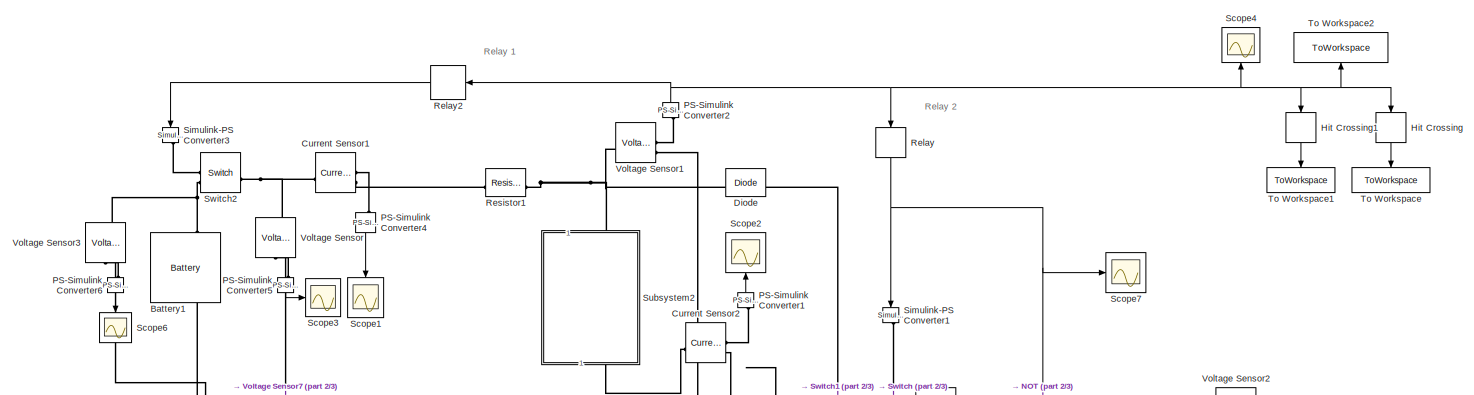
[diagram: root canvas - part 1/3, full width, top band]
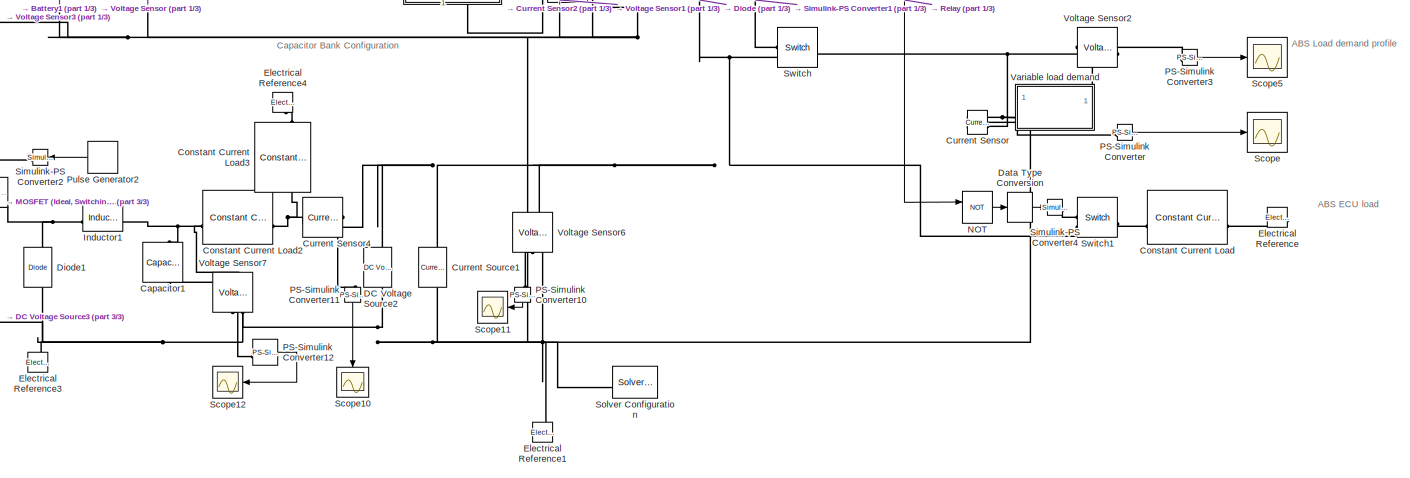
[diagram: root canvas - part 2/3, full width, bottom band]
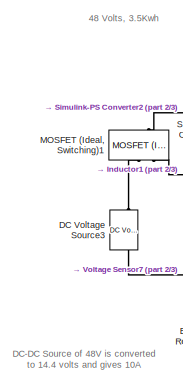
[diagram: root canvas - part 3/3, bottom left region]
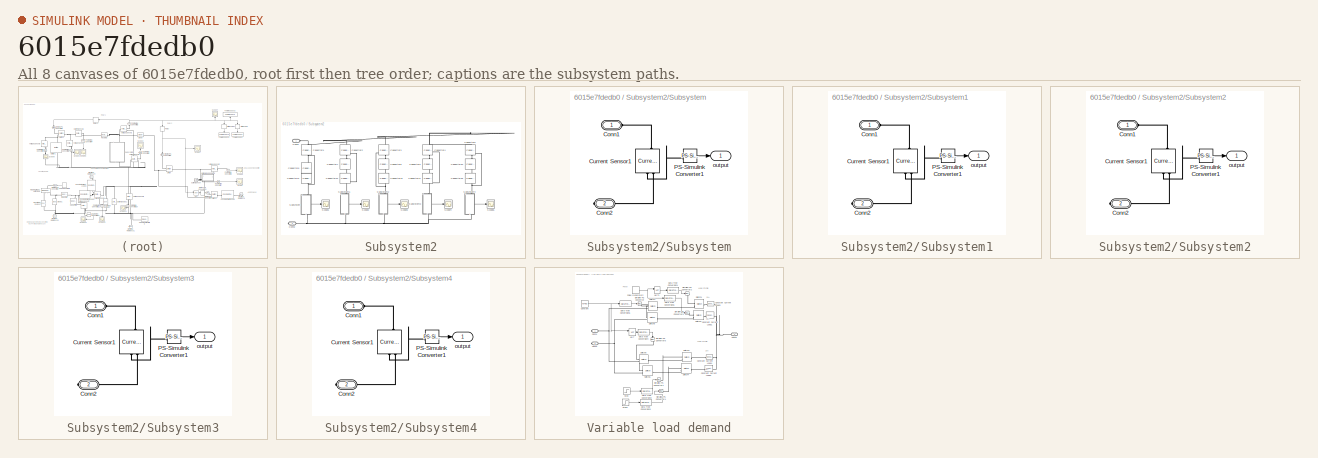
[diagram: thumbnail index - all 8 canvases of the model, root first then tree order]
MODEL slx_6015e7fdedb0
KIND model
CONFIG AbsTol = auto
CONFIG EnableMultiTasking = off
CONFIG FixedStep = auto
CONFIG MaxStep = auto
CONFIG MinStep = auto
CONFIG RelTol = 1e-3
CONFIG SampleTimeConstraint = Unconstrained
CONFIG SolverName = VariableStepAuto
CONFIG StartTime = 0.0
CONFIG StopTime = 200
BLOCK [Reference] Battery1  REF=batteryecm_lib/Battery
  LibrarySourceBlock = ee_lib/Sources/Battery
  NameLocation = right
  SourceBlock = batteryecm_lib/Battery
  SourceType = Battery
BLOCK [Reference] Capacitor1  REF=fl_lib/Electrical/Electrical Elements/Capacitor
  Commented = on
  NameLocation = left
  SourceBlock = fl_lib/Electrical/Electrical Elements/Capacitor
  SourceType = Capacitor
BLOCK [Reference] Constant Current Load  REF=ee_lib/Passive/Constant Current
Load
  SourceBlock = ee_lib/Passive/Constant Current\nLoad
  SourceType = Constant Current\nLoad
BLOCK [Reference] Constant Current Load2  REF=ee_lib/Passive/Constant Current
Load
  Commented = on
  SourceBlock = ee_lib/Passive/Constant Current\nLoad
  SourceType = Constant Current\nLoad
BLOCK [Reference] Constant Current Load3  REF=ee_lib/Passive/Constant Current
Load
  Commented = on
  NameLocation = right
  SourceBlock = ee_lib/Passive/Constant Current\nLoad
  SourceType = Constant Current\nLoad
BLOCK [Reference] Current Sensor  REF=fl_lib/Electrical/Electrical Sensors/Current Sensor
  LibrarySourceBlock = ee_lib/Sensors &\nTransducers/Current Sensor
  SourceBlock = fl_lib/Electrical/Electrical Sensors/Current Sensor
  SourceType = Current Sensor
BLOCK [Reference] Current Sensor1  REF=fl_lib/Electrical/Electrical Sensors/Current Sensor
  LibrarySourceBlock = ee_lib/Sensors &\nTransducers/Current Sensor
  SourceBlock = fl_lib/Electrical/Electrical Sensors/Current Sensor
  SourceType = Current Sensor
BLOCK [Reference] Current Sensor2  REF=fl_lib/Electrical/Electrical Sensors/Current Sensor
  LibrarySourceBlock = ee_lib/Sensors &\nTransducers/Current Sensor
  SourceBlock = fl_lib/Electrical/Electrical Sensors/Current Sensor
  SourceType = Current Sensor
BLOCK [Reference] Current Sensor4  REF=fl_lib/Electrical/Electrical Sensors/Current Sensor
  Commented = on
  LibrarySourceBlock = ee_lib/Sensors &\nTransducers/Current Sensor
  SourceBlock = fl_lib/Electrical/Electrical Sensors/Current Sensor
  SourceType = Current Sensor
BLOCK [Reference] Current Source1  REF=ee_lib/Sources/Current Source
  NameLocation = left
  SourceBlock = ee_lib/Sources/Current Source
  SourceType = Current Source
BLOCK [Reference] DC Voltage Source2  REF=ee_lib/Additional
Components/SPICE Sources/DC Voltage Source
  Commented = on
  NameLocation = right
  SourceBlock = ee_lib/Additional\nComponents/SPICE Sources/DC Voltage Source
  SourceType = DC Voltage Source
BLOCK [Reference] DC Voltage Source3  REF=ee_lib/Additional
Components/SPICE Sources/DC Voltage Source
  Commented = on
  NameLocation = right
  SourceBlock = ee_lib/Additional\nComponents/SPICE Sources/DC Voltage Source
  SourceType = DC Voltage Source
BLOCK [DataTypeConversion] Data Type Conversion
  OutDataTypeStr = double
  RndMeth = Floor
  SaturateOnIntegerOverflow = off
BLOCK [Reference] Diode  REF=ee_lib/Semiconductors &
Converters/Diode
  SourceBlock = ee_lib/Semiconductors &\nConverters/Diode
  SourceType = Diode
BLOCK [Reference] Diode1  REF=fl_lib/Electrical/Electrical Elements/Diode
  Commented = on
  NameLocation = right
  SourceBlock = fl_lib/Electrical/Electrical Elements/Diode
  SourceType = Diode
BLOCK [Reference] Electrical Reference  REF=fl_lib/Electrical/Electrical Elements/Electrical Reference
  NameLocation = top
  SourceBlock = fl_lib/Electrical/Electrical Elements/Electrical Reference
  SourceType = Electrical Reference
BLOCK [Reference] Electrical Reference1  REF=fl_lib/Electrical/Electrical Elements/Electrical Reference
  NameLocation = right
  SourceBlock = fl_lib/Electrical/Electrical Elements/Electrical Reference
  SourceType = Electrical Reference
BLOCK [Reference] Electrical Reference3  REF=fl_lib/Electrical/Electrical Elements/Electrical Reference
  Commented = on
  NameLocation = right
  SourceBlock = fl_lib/Electrical/Electrical Elements/Electrical Reference
  SourceType = Electrical Reference
BLOCK [Reference] Electrical Reference4  REF=fl_lib/Electrical/Electrical Elements/Electrical Reference
  Commented = on
  NameLocation = left
  SourceBlock = fl_lib/Electrical/Electrical Elements/Electrical Reference
  SourceType = Electrical Reference
BLOCK [HitCross] Hit Crossing
  HitCrossingDirection = rising
  HitCrossingOffset = 14.4-1e-5
  NameLocation = left
BLOCK [HitCross] Hit Crossing1
  HitCrossingDirection = falling
  HitCrossingOffset = 12+1e-5
  NameLocation = left
BLOCK [Reference] Inductor1  REF=ee_lib/Passive/Inductor
  Commented = on
  SourceBlock = ee_lib/Passive/Inductor
  SourceType = Inductor
BLOCK [Reference] MOSFET (Ideal, Switching)1  REF=ee_lib/Semiconductors &
Converters/MOSFET
(Ideal,
Switching)
  Commented = on
  NameLocation = left
  SourceBlock = ee_lib/Semiconductors &\nConverters/MOSFET\n(Ideal,\nSwitching)
  SourceType = MOSFET\n(Ideal,\nSwitching)
BLOCK [Logic] NOT
  AllPortsSameDT = off
  IconShape = distinctive
  Operator = NOT
  OutDataTypeStr = boolean
BLOCK [Reference] PS-Simulink Converter  REF=nesl_utility/PS-Simulink
Converter
  SourceBlock = nesl_utility/PS-Simulink\nConverter
  SourceType = PS-Simulink\nConverter
BLOCK [Reference] PS-Simulink Converter1  REF=nesl_utility/PS-Simulink
Converter
  NameLocation = right
  SourceBlock = nesl_utility/PS-Simulink\nConverter
  SourceType = PS-Simulink\nConverter
BLOCK [Reference] PS-Simulink Converter10  REF=nesl_utility/PS-Simulink
Converter
  Commented = on
  NameLocation = left
  SourceBlock = nesl_utility/PS-Simulink\nConverter
  SourceType = PS-Simulink\nConverter
BLOCK [Reference] PS-Simulink Converter11  REF=nesl_utility/PS-Simulink
Converter
  Commented = on
  NameLocation = left
  SourceBlock = nesl_utility/PS-Simulink\nConverter
  SourceType = PS-Simulink\nConverter
BLOCK [Reference] PS-Simulink Converter12  REF=nesl_utility/PS-Simulink
Converter
  Commented = on
  SourceBlock = nesl_utility/PS-Simulink\nConverter
  SourceType = PS-Simulink\nConverter
BLOCK [Reference] PS-Simulink Converter2  REF=nesl_utility/PS-Simulink
Converter
  NameLocation = right
  SourceBlock = nesl_utility/PS-Simulink\nConverter
  SourceType = PS-Simulink\nConverter
BLOCK [Reference] PS-Simulink Converter3  REF=nesl_utility/PS-Simulink
Converter
  SourceBlock = nesl_utility/PS-Simulink\nConverter
  SourceType = PS-Simulink\nConverter
BLOCK [Reference] PS-Simulink Converter4  REF=nesl_utility/PS-Simulink
Converter
  NameLocation = left
  SourceBlock = nesl_utility/PS-Simulink\nConverter
  SourceType = PS-Simulink\nConverter
BLOCK [Reference] PS-Simulink Converter5  REF=nesl_utility/PS-Simulink
Converter
  NameLocation = left
  SourceBlock = nesl_utility/PS-Simulink\nConverter
  SourceType = PS-Simulink\nConverter
BLOCK [Reference] PS-Simulink Converter6  REF=nesl_utility/PS-Simulink
Converter
  NameLocation = left
  SourceBlock = nesl_utility/PS-Simulink\nConverter
  SourceType = PS-Simulink\nConverter
BLOCK [DiscretePulseGenerator] Pulse Generator2
  Amplitude = 10
  Commented = on
  NameLocation = top
  Period = 6.8e-6
  PulseType = Time based
  PulseWidth = 35
BLOCK [Relay] Relay
  NameLocation = left
  OffSwitchValue = 12
  OnSwitchValue = 14.4
BLOCK [Relay] Relay2
  NameLocation = top
  OffOutputValue = 1
  OffSwitchValue = 12
  OnOutputValue = 0
  OnSwitchValue = 14.4
BLOCK [Reference] Resistor1  REF=ee_lib/Passive/Resistor
  SourceBlock = ee_lib/Passive/Resistor
  SourceType = Resistor
BLOCK [Scope] Scope
  ActiveDisplayYMaximum = 27.61130390431217
  ActiveDisplayYMinimum = -2.3648639856745817
  ContainerLayout = {"WindowBounds":[-15,0,1554,868]}
  Floating = off
  GraphicalSettings = {"Style":{"BackgroundColor":[0.12941176470588237,0.12941176470588237,0.12941176470588237],"AxesColor":[0.07058823529411765,0.07058823529411765,0.07058823529411765],"LabelsColor":[0.8509803921568627,0.8509803921568627,0.8509803921568627],"PreserveColors":false,"Visible":[true],"LineStyle":["-"],"LineWidth":[1.5],"BarWidth":[0.9],"LineColor":["auto"],"LineFaceAlpha":[1],"LineEdgeAlpha":[1],"Marker":...<+2004ch>
  MultipleDisplayCache = [{"MaxYLimMag":28.031250076644522,"MaxYLimReal":27.61130390431217,"MinYLimMag":0,"MinYLimReal":-2.3648639856745817,"PlotAsMagnitudePhase":false,"ShowGrid":true,"ShowLegend":false,"Title":"%<SignalLabel>","YLabel":""}]
  NameLocation = top
  NumInputPorts = 1
  ScopeFrameLocation = container
  Visible = on
  WasSavedAsWebScope = on
  WindowPosition = [-15.000000,-4.000000,1539.000000,844.000000,]
BLOCK [Scope] Scope1
  ActiveDisplayYMaximum = 37.045887512901437
  ActiveDisplayYMinimum = 17.431562644790098
  DataLoggingVariableName = ScopeData2
  Floating = off
  GraphicalSettings = {"AxesScalingProperties":{"AlignXAxis":"Center","AlignYAxis":"Center","AutoScaleXAxisLimits":false,"AxesScaling":"Manual","AxesScalingNumUpdates":10,"ExpandOnly":true,"ScaleAxesLimitsAtStop":false,"XAxisDataRange":100,"YAxisDataRange":80},"DisplayProperties":{"ColorOrder":["auto","auto","auto","auto","auto","auto","auto","auto","auto","auto","auto","auto","auto","auto","auto","auto","auto","auto",...<+2014ch>
  MultipleDisplayCache = [{"MaxYLimMag":39.582278342271373,"MaxYLimReal":37.045887512901437,"MinYLimMag":0,"MinYLimReal":17.431562644790098,"PlotAsMagnitudePhase":false,"ShowGrid":true,"ShowLegend":false,"Title":"%<SignalLabel>","YLabel":""}]
  NameLocation = left
  NumInputPorts = 1
  ScopeFrameLocation = window
  WasSavedAsWebScope = on
  WindowPosition = [0.000000,36.000000,1536.000000,793.000000,]
BLOCK [Scope] Scope10
  ActiveDisplayYMaximum = 5.2520104006562276
  ActiveDisplayYMinimum = -7.2502393778438039
  Commented = on
  DataLoggingVariableName = ScopeData12
  Floating = off
  GraphicalSettings = {"Style":{"BackgroundColor":[0.12941176470588237,0.12941176470588237,0.12941176470588237],"AxesColor":[0.07058823529411765,0.07058823529411765,0.07058823529411765],"LabelsColor":[0.8509803921568627,0.8509803921568627,0.8509803921568627],"PreserveColors":false,"Visible":[true],"LineStyle":["-"],"LineWidth":[1.5],"BarWidth":[0.9],"LineColor":["auto"],"LineFaceAlpha":[1],"LineEdgeAlpha":[1],"Marker":...<+2002ch>
  MultipleDisplayCache = [{"MaxYLimMag":7.2502393778438039,"MaxYLimReal":5.2520104006562276,"MinYLimMag":0,"MinYLimReal":-7.2502393778438039,"PlotAsMagnitudePhase":false,"ShowGrid":true,"ShowLegend":false,"Title":"%<SignalLabel>","YLabel":""}]
  NameLocation = left
  NumInputPorts = 1
  ScopeFrameLocation = window
  WasSavedAsWebScope = on
  WindowPosition = [0.000000,36.000000,1536.000000,793.000000,]
BLOCK [Scope] Scope11
  ActiveDisplayYMaximum = 2.2500000758625E+8
  ActiveDisplayYMinimum = -2.4999995176250011E+7
  Commented = on
  DataLoggingVariableName = ScopeData13
  Floating = off
  GraphicalSettings = {"Style":{"BackgroundColor":[0.12941176470588237,0.12941176470588237,0.12941176470588237],"AxesColor":[0.07058823529411765,0.07058823529411765,0.07058823529411765],"LabelsColor":[0.8509803921568627,0.8509803921568627,0.8509803921568627],"PreserveColors":false,"Visible":[true],"LineStyle":["-"],"LineWidth":[1.5],"BarWidth":[0.9],"LineColor":["auto"],"LineFaceAlpha":[1],"LineEdgeAlpha":[1],"Marker":...<+1994ch>
  MultipleDisplayCache = [{"MaxYLimMag":2.2500000758625E+8,"MaxYLimReal":2.2500000758625E+8,"MinYLimMag":0,"MinYLimReal":-2.4999995176250011E+7,"PlotAsMagnitudePhase":false,"ShowGrid":true,"ShowLegend":false,"Title":"%<SignalLabel>","YLabel":""}]
  NameLocation = top
  NumInputPorts = 1
  ScopeFrameLocation = window
  WasSavedAsWebScope = on
  WindowPosition = [0.000000,36.000000,1536.000000,793.000000,]
BLOCK [Scope] Scope12
  ActiveDisplayYMaximum = 22.011261673851934
  ActiveDisplayYMinimum = -2.4456957415230445
  Commented = on
  DataLoggingVariableName = ScopeData15
  Floating = off
  GraphicalSettings = {"Style":{"BackgroundColor":[0.12941176470588237,0.12941176470588237,0.12941176470588237],"AxesColor":[0.07058823529411765,0.07058823529411765,0.07058823529411765],"LabelsColor":[0.8509803921568627,0.8509803921568627,0.8509803921568627],"PreserveColors":false,"Visible":[true],"LineStyle":["-"],"LineWidth":[1.5],"BarWidth":[0.9],"LineColor":["auto"],"LineFaceAlpha":[1],"LineEdgeAlpha":[1],"Marker":...<+2198ch>
  MultipleDisplayCache = [{"MaxYLimMag":22.011261673851934,"MaxYLimReal":22.011261673851934,"MinYLimMag":0,"MinYLimReal":-2.4456957415230445,"PlotAsMagnitudePhase":false,"ShowGrid":true,"ShowLegend":false,"Title":"%<SignalLabel>","YLabel":""}]
  NameLocation = top
  NumInputPorts = 1
  ScopeFrameLocation = window
  WasSavedAsWebScope = on
  WindowPosition = [0.000000,36.000000,1536.000000,793.000000,]
BLOCK [Scope] Scope2
  ActiveDisplayYMaximum = 43.051029686023256
  ActiveDisplayYMinimum = -28.1167808744842
  DataLoggingVariableName = ScopeData3
  Floating = off
  GraphicalSettings = {"Style":{"BackgroundColor":[0.12941176470588237,0.12941176470588237,0.12941176470588237],"AxesColor":[0.07058823529411765,0.07058823529411765,0.07058823529411765],"LabelsColor":[0.8509803921568627,0.8509803921568627,0.8509803921568627],"PreserveColors":false,"Visible":[true],"LineStyle":["-"],"LineWidth":[1.5],"BarWidth":[0.9],"LineColor":["auto"],"LineFaceAlpha":[1],"LineEdgeAlpha":[1],"Marker":...<+2003ch>
  MultipleDisplayCache = [{"MaxYLimMag":43.051029686023256,"MaxYLimReal":43.051029686023256,"MinYLimMag":0,"MinYLimReal":-28.1167808744842,"PlotAsMagnitudePhase":false,"ShowGrid":true,"ShowLegend":false,"Title":"%<SignalLabel>","YLabel":""}]
  NameLocation = right
  NumInputPorts = 1
  ScopeFrameLocation = window
  WasSavedAsWebScope = on
  WindowPosition = [0.000000,36.000000,1536.000000,793.000000,]
BLOCK [Scope] Scope3
  ActiveDisplayYMaximum = 51.6083510764541
  ActiveDisplayYMinimum = 7.599072497448482
  DataLoggingVariableName = ScopeData10
  Floating = off
  GraphicalSettings = {"Style":{"BackgroundColor":[0.12941176470588237,0.12941176470588237,0.12941176470588237],"AxesColor":[0.07058823529411765,0.07058823529411765,0.07058823529411765],"LabelsColor":[0.8509803921568627,0.8509803921568627,0.8509803921568627],"PreserveColors":false,"Visible":[true],"LineStyle":["-"],"LineWidth":[1.5],"BarWidth":[0.9],"LineColor":["auto"],"LineFaceAlpha":[1],"LineEdgeAlpha":[1],"Marker":...<+2027ch>
  MultipleDisplayCache = [{"MaxYLimMag":51.6083510764541,"MaxYLimReal":51.6083510764541,"MinYLimMag":7.599072497448482,"MinYLimReal":7.599072497448482,"PlotAsMagnitudePhase":false,"ShowGrid":true,"ShowLegend":false,"Title":"%<SignalLabel>","YLabel":""}]
  NumInputPorts = 1
  ScopeFrameLocation = window
  WasSavedAsWebScope = on
  WindowPosition = [917.000000,259.000000,560.000000,420.000000,]
BLOCK [Scope] Scope4
  ActiveDisplayYMaximum = 14.527639533826589
  ActiveDisplayYMinimum = 11.875151160641268
  DataLoggingVariableName = ScopeData4
  Floating = off
  GraphicalSettings = {"AxesScalingProperties":{"AlignXAxis":"Center","AlignYAxis":"Center","AutoScaleXAxisLimits":false,"AxesScaling":"Manual","AxesScalingNumUpdates":10,"ExpandOnly":true,"ScaleAxesLimitsAtStop":false,"XAxisDataRange":100,"YAxisDataRange":80},"DisplayProperties":{"ColorOrder":["auto","auto","auto","auto","auto","auto","auto","auto","auto","auto","auto","auto","auto","auto","auto","auto","auto","auto",...<+2046ch>
  MultipleDisplayCache = [{"MaxYLimMag":14.7,"MaxYLimReal":14.527639533826589,"MinYLimMag":11.700000000000003,"MinYLimReal":11.875151160641268,"PlotAsMagnitudePhase":false,"ShowGrid":true,"ShowLegend":false,"Title":"%<SignalLabel>","YLabel":""}]
  NameLocation = right
  NumInputPorts = 1
  ScopeFrameLocation = window
  WasSavedAsWebScope = on
  WindowPosition = [0.000000,36.000000,1536.000000,793.000000,]
BLOCK [Scope] Scope5
  ActiveDisplayYMaximum = 14.246288485536391
  ActiveDisplayYMinimum = 2.3596738442827845
  DataLoggingVariableName = ScopeData5
  Floating = off
  GraphicalSettings = {"Style":{"BackgroundColor":[0.12941176470588237,0.12941176470588237,0.12941176470588237],"AxesColor":[0.07058823529411765,0.07058823529411765,0.07058823529411765],"LabelsColor":[0.8509803921568627,0.8509803921568627,0.8509803921568627],"PreserveColors":false,"Visible":[true],"LineStyle":["-"],"LineWidth":[1.5],"BarWidth":[0.9],"LineColor":["auto"],"LineFaceAlpha":[1],"LineEdgeAlpha":[1],"Marker":...<+2039ch>
  MultipleDisplayCache = [{"MaxYLimMag":14.246288485536391,"MaxYLimReal":14.246288485536391,"MinYLimMag":2.3596738442827845,"MinYLimReal":2.3596738442827845,"PlotAsMagnitudePhase":false,"ShowGrid":true,"ShowLegend":false,"Title":"%<SignalLabel>","YLabel":""}]
  NumInputPorts = 1
  ScopeFrameLocation = window
  WasSavedAsWebScope = on
  WindowPosition = [0.000000,36.000000,1536.000000,793.000000,]
BLOCK [Scope] Scope6
  ActiveDisplayYMaximum = 47.537116092591106
  ActiveDisplayYMinimum = 47.527226275989328
  DataLoggingVariableName = ScopeData11
  Floating = off
  GraphicalSettings = {"Style":{"BackgroundColor":[0.12941176470588237,0.12941176470588237,0.12941176470588237],"AxesColor":[0.07058823529411765,0.07058823529411765,0.07058823529411765],"LabelsColor":[0.8509803921568627,0.8509803921568627,0.8509803921568627],"PreserveColors":false,"Visible":[true],"LineStyle":["-"],"LineWidth":[1.5],"BarWidth":[0.9],"LineColor":["auto"],"LineFaceAlpha":[1],"LineEdgeAlpha":[1],"Marker":...<+2035ch>
  MultipleDisplayCache = [{"MaxYLimMag":47.537116092591106,"MaxYLimReal":47.537116092591106,"MinYLimMag":47.527226275989328,"MinYLimReal":47.527226275989328,"PlotAsMagnitudePhase":false,"ShowGrid":true,"ShowLegend":false,"Title":"%<SignalLabel>","YLabel":""}]
  NameLocation = left
  NumInputPorts = 1
  ScopeFrameLocation = window
  WasSavedAsWebScope = on
  WindowPosition = [917.000000,259.000000,560.000000,420.000000,]
BLOCK [Scope] Scope7
  ActiveDisplayYMaximum = 1.125
  ActiveDisplayYMinimum = -0.12499999999999997
  DataLoggingVariableName = ScopeData14
  Floating = off
  GraphicalSettings = {"Style":{"BackgroundColor":[0.12941176470588237,0.12941176470588237,0.12941176470588237],"AxesColor":[0.07058823529411765,0.07058823529411765,0.07058823529411765],"LabelsColor":[0.8509803921568627,0.8509803921568627,0.8509803921568627],"PreserveColors":false,"Visible":[true],"LineStyle":["-"],"LineWidth":[1.5],"BarWidth":[0.9],"LineColor":["auto"],"LineFaceAlpha":[1],"LineEdgeAlpha":[1],"Marker":...<+2022ch>
  MultipleDisplayCache = [{"MaxYLimMag":1.125,"MaxYLimReal":1.125,"MinYLimMag":0,"MinYLimReal":-0.12499999999999997,"PlotAsMagnitudePhase":false,"ShowGrid":true,"ShowLegend":false,"Title":"%<SignalLabel>","YLabel":""}]
  NumInputPorts = 1
  ScopeFrameLocation = window
  WasSavedAsWebScope = on
  WindowPosition = [0.000000,36.000000,1536.000000,793.000000,]
BLOCK [Reference] Simulink-PS Converter1  REF=nesl_utility/Simulink-PS
Converter
  NameLocation = left
  SourceBlock = nesl_utility/Simulink-PS\nConverter
  SourceType = Simulink-PS\nConverter
BLOCK [Reference] Simulink-PS Converter2  REF=nesl_utility/Simulink-PS
Converter
  Commented = on
  NameLocation = top
  SourceBlock = nesl_utility/Simulink-PS\nConverter
  SourceType = Simulink-PS\nConverter
BLOCK [Reference] Simulink-PS Converter3  REF=nesl_utility/Simulink-PS
Converter
  NameLocation = left
  SourceBlock = nesl_utility/Simulink-PS\nConverter
  SourceType = Simulink-PS\nConverter
BLOCK [Reference] Simulink-PS Converter4  REF=nesl_utility/Simulink-PS
Converter
  SourceBlock = nesl_utility/Simulink-PS\nConverter
  SourceType = Simulink-PS\nConverter
BLOCK [Reference] Solver Configuration  REF=nesl_utility/Solver
Configuration
  NameLocation = top
  SourceBlock = nesl_utility/Solver\nConfiguration
  SourceType = Solver\nConfiguration
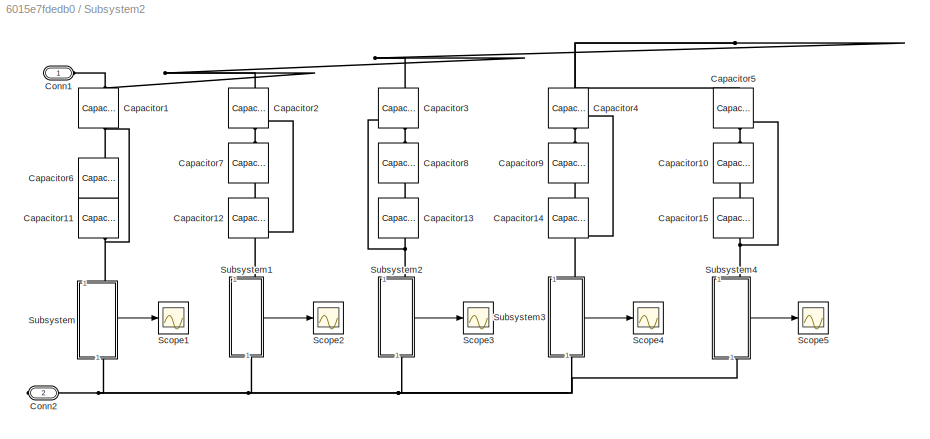
BLOCK [SubSystem] Subsystem2
  NameLocation = left
BLOCK [Reference] Subsystem2/Capacitor1  REF=fl_lib/Electrical/Electrical Elements/Capacitor
  NameLocation = left
  SourceBlock = fl_lib/Electrical/Electrical Elements/Capacitor
  SourceType = Capacitor
BLOCK [Reference] Subsystem2/Capacitor10  REF=fl_lib/Electrical/Electrical Elements/Capacitor
  Commented = on
  NameLocation = left
  SourceBlock = fl_lib/Electrical/Electrical Elements/Capacitor
  SourceType = Capacitor
BLOCK [Reference] Subsystem2/Capacitor11  REF=fl_lib/Electrical/Electrical Elements/Capacitor
  Commented = on
  NameLocation = left
  SourceBlock = fl_lib/Electrical/Electrical Elements/Capacitor
  SourceType = Capacitor
BLOCK [Reference] Subsystem2/Capacitor12  REF=fl_lib/Electrical/Electrical Elements/Capacitor
  Commented = on
  NameLocation = left
  SourceBlock = fl_lib/Electrical/Electrical Elements/Capacitor
  SourceType = Capacitor
BLOCK [Reference] Subsystem2/Capacitor13  REF=fl_lib/Electrical/Electrical Elements/Capacitor
  Commented = on
  NameLocation = left
  SourceBlock = fl_lib/Electrical/Electrical Elements/Capacitor
  SourceType = Capacitor
BLOCK [Reference] Subsystem2/Capacitor14  REF=fl_lib/Electrical/Electrical Elements/Capacitor
  Commented = on
  NameLocation = left
  SourceBlock = fl_lib/Electrical/Electrical Elements/Capacitor
  SourceType = Capacitor
BLOCK [Reference] Subsystem2/Capacitor15  REF=fl_lib/Electrical/Electrical Elements/Capacitor
  Commented = on
  NameLocation = left
  SourceBlock = fl_lib/Electrical/Electrical Elements/Capacitor
  SourceType = Capacitor
BLOCK [Reference] Subsystem2/Capacitor2  REF=fl_lib/Electrical/Electrical Elements/Capacitor
  Commented = on
  NameLocation = left
  SourceBlock = fl_lib/Electrical/Electrical Elements/Capacitor
  SourceType = Capacitor
BLOCK [Reference] Subsystem2/Capacitor3  REF=fl_lib/Electrical/Electrical Elements/Capacitor
  Commented = on
  NameLocation = left
  SourceBlock = fl_lib/Electrical/Electrical Elements/Capacitor
  SourceType = Capacitor
BLOCK [Reference] Subsystem2/Capacitor4  REF=fl_lib/Electrical/Electrical Elements/Capacitor
  Commented = on
  NameLocation = left
  SourceBlock = fl_lib/Electrical/Electrical Elements/Capacitor
  SourceType = Capacitor
BLOCK [Reference] Subsystem2/Capacitor5  REF=fl_lib/Electrical/Electrical Elements/Capacitor
  Commented = on
  NameLocation = left
  SourceBlock = fl_lib/Electrical/Electrical Elements/Capacitor
  SourceType = Capacitor
BLOCK [Reference] Subsystem2/Capacitor6  REF=fl_lib/Electrical/Electrical Elements/Capacitor
  Commented = on
  NameLocation = left
  SourceBlock = fl_lib/Electrical/Electrical Elements/Capacitor
  SourceType = Capacitor
BLOCK [Reference] Subsystem2/Capacitor7  REF=fl_lib/Electrical/Electrical Elements/Capacitor
  Commented = on
  NameLocation = left
  SourceBlock = fl_lib/Electrical/Electrical Elements/Capacitor
  SourceType = Capacitor
BLOCK [Reference] Subsystem2/Capacitor8  REF=fl_lib/Electrical/Electrical Elements/Capacitor
  Commented = on
  NameLocation = left
  SourceBlock = fl_lib/Electrical/Electrical Elements/Capacitor
  SourceType = Capacitor
BLOCK [Reference] Subsystem2/Capacitor9  REF=fl_lib/Electrical/Electrical Elements/Capacitor
  Commented = on
  NameLocation = left
  SourceBlock = fl_lib/Electrical/Electrical Elements/Capacitor
  SourceType = Capacitor
BLOCK [PMIOPort] Subsystem2/Conn1
  Side = Left
BLOCK [PMIOPort] Subsystem2/Conn2
  NameLocation = top
  Port = 2
  Side = Right
BLOCK [Scope] Subsystem2/Scope1
  ActiveDisplayYMaximum = -8.8960627023866969
  ActiveDisplayYMinimum = -26.0749663060359
  DataLoggingVariableName = ScopeData1
  Floating = off
  GraphicalSettings = {"AxesScalingProperties":{"AlignXAxis":"Center","AlignYAxis":"Center","AutoScaleXAxisLimits":false,"AxesScaling":"Manual","AxesScalingNumUpdates":10,"ExpandOnly":true,"ScaleAxesLimitsAtStop":false,"XAxisDataRange":100,"YAxisDataRange":80},"DisplayProperties":{"ColorOrder":["auto","auto","auto","auto","auto","auto","auto","auto","auto","auto","auto","auto","auto","auto","auto","auto","auto","auto",...<+1999ch>
  MultipleDisplayCache = [{"MaxYLimMag":27.870922892030176,"MaxYLimReal":-8.8960627023866969,"MinYLimMag":0,"MinYLimReal":-26.0749663060359,"PlotAsMagnitudePhase":false,"ShowGrid":true,"ShowLegend":false,"Title":"%<SignalLabel>","YLabel":""}]
  NumInputPorts = 1
  ScopeFrameLocation = window
  WasSavedAsWebScope = on
  WindowPosition = [0.000000,36.000000,1536.000000,793.000000,]
BLOCK [Scope] Subsystem2/Scope2
  ActiveDisplayYMaximum = 5.6799472599220806
  ActiveDisplayYMinimum = -32.03150883871016
  Commented = on
  DataLoggingVariableName = ScopeData6
  Floating = off
  GraphicalSettings = {"Style":{"BackgroundColor":[0.12941176470588237,0.12941176470588237,0.12941176470588237],"AxesColor":[0.07058823529411765,0.07058823529411765,0.07058823529411765],"LabelsColor":[0.8509803921568627,0.8509803921568627,0.8509803921568627],"PreserveColors":false,"Visible":[true],"LineStyle":["-"],"LineWidth":[1.5],"BarWidth":[0.9],"LineColor":["auto"],"LineFaceAlpha":[1],"LineEdgeAlpha":[1],"Marker":...<+1990ch>  <repeated x4 — deduplicated; at blocks: Scope2, Scope3, Scope4, Scope5>
  MultipleDisplayCache = [{"MaxYLimMag":27.870922892030176,"MaxYLimReal":5.6799472599220806,"MinYLimMag":0,"MinYLimReal":-32.03150883871016,"PlotAsMagnitudePhase":false,"ShowGrid":true,"ShowLegend":false,"Title":"%<SignalLabel>","YLabel":""}]  <repeated x4 — deduplicated; at blocks: Scope2, Scope3, Scope4, Scope5>
  NumInputPorts = 1
  ScopeFrameLocation = window
  WasSavedAsWebScope = on
  WindowPosition = [0.000000,36.000000,1536.000000,793.000000,]
BLOCK [Scope] Subsystem2/Scope3
  ActiveDisplayYMaximum = 5.6799472599220806
  ActiveDisplayYMinimum = -32.03150883871016
  Commented = on
  DataLoggingVariableName = ScopeData7
  Floating = off
  NumInputPorts = 1
  ScopeFrameLocation = window
  WasSavedAsWebScope = on
  WindowPosition = [0.000000,36.000000,1536.000000,793.000000,]
BLOCK [Scope] Subsystem2/Scope4
  ActiveDisplayYMaximum = 5.6799472599220806
  ActiveDisplayYMinimum = -32.03150883871016
  Commented = on
  DataLoggingVariableName = ScopeData8
  Floating = off
  NumInputPorts = 1
  ScopeFrameLocation = window
  WasSavedAsWebScope = on
  WindowPosition = [0.000000,36.000000,1536.000000,793.000000,]
BLOCK [Scope] Subsystem2/Scope5
  ActiveDisplayYMaximum = 5.6799472599220806
  ActiveDisplayYMinimum = -32.03150883871016
  Commented = on
  DataLoggingVariableName = ScopeData9
  Floating = off
  NumInputPorts = 1
  ScopeFrameLocation = window
  WasSavedAsWebScope = on
  WindowPosition = [0.000000,36.000000,1536.000000,793.000000,]
BLOCK [SubSystem] Subsystem2/Subsystem
  NameLocation = left
  PortSchema = {"entries":[{"content":{"sides":[{"content":{"connectorIds":["LConn1"]},"type":"ConnectorPlacement.EquallySpacedRectSide","uuid":"81a8c0f4-8ed9-4d4b-bd28-04771a05fe4f"},{"content":{"connectorIds":["RConn1"],"side":"RIGHT"},"type":"ConnectorPlacement.EquallySpacedRectSide","uuid":"31ca84c7-3f86-4e13-8cf7-6dd391f2d0e6"},{"content":{"connectorIds":["Out1"],"side":"TOP"},"type":"ConnectorPlacement.Equ...<+251ch>  <repeated x5 — deduplicated; at blocks: Subsystem, Subsystem1, Subsystem2, Subsystem3, Subsystem4>
BLOCK [PMIOPort] Subsystem2/Subsystem/Conn1
  Side = Left
BLOCK [PMIOPort] Subsystem2/Subsystem/Conn2
  Port = 2
  Side = Right
BLOCK [Reference] Subsystem2/Subsystem/Current Sensor1  REF=fl_lib/Electrical/Electrical Sensors/Current Sensor
  LibrarySourceBlock = ee_lib/Sensors &\nTransducers/Current Sensor
  NameLocation = left
  SourceBlock = fl_lib/Electrical/Electrical Sensors/Current Sensor
  SourceType = Current Sensor
BLOCK [Reference] Subsystem2/Subsystem/PS-Simulink Converter1  REF=nesl_utility/PS-Simulink
Converter
  SourceBlock = nesl_utility/PS-Simulink\nConverter
  SourceType = PS-Simulink\nConverter
BLOCK [Outport] Subsystem2/Subsystem/output
BLOCK [SubSystem] Subsystem2/Subsystem1
  Commented = on
  NameLocation = left
BLOCK [PMIOPort] Subsystem2/Subsystem1/Conn1
  Side = Left
BLOCK [PMIOPort] Subsystem2/Subsystem1/Conn2
  Port = 2
  Side = Right
BLOCK [Reference] Subsystem2/Subsystem1/Current Sensor1  REF=fl_lib/Electrical/Electrical Sensors/Current Sensor
  LibrarySourceBlock = ee_lib/Sensors &\nTransducers/Current Sensor
  NameLocation = left
  SourceBlock = fl_lib/Electrical/Electrical Sensors/Current Sensor
  SourceType = Current Sensor
BLOCK [Reference] Subsystem2/Subsystem1/PS-Simulink Converter1  REF=nesl_utility/PS-Simulink
Converter
  SourceBlock = nesl_utility/PS-Simulink\nConverter
  SourceType = PS-Simulink\nConverter
BLOCK [Outport] Subsystem2/Subsystem1/output
BLOCK [SubSystem] Subsystem2/Subsystem2
  Commented = on
  NameLocation = left
BLOCK [PMIOPort] Subsystem2/Subsystem2/Conn1
  Side = Left
BLOCK [PMIOPort] Subsystem2/Subsystem2/Conn2
  Port = 2
  Side = Right
BLOCK [Reference] Subsystem2/Subsystem2/Current Sensor1  REF=fl_lib/Electrical/Electrical Sensors/Current Sensor
  LibrarySourceBlock = ee_lib/Sensors &\nTransducers/Current Sensor
  NameLocation = left
  SourceBlock = fl_lib/Electrical/Electrical Sensors/Current Sensor
  SourceType = Current Sensor
BLOCK [Reference] Subsystem2/Subsystem2/PS-Simulink Converter1  REF=nesl_utility/PS-Simulink
Converter
  SourceBlock = nesl_utility/PS-Simulink\nConverter
  SourceType = PS-Simulink\nConverter
BLOCK [Outport] Subsystem2/Subsystem2/output
BLOCK [SubSystem] Subsystem2/Subsystem3
  Commented = on
  NameLocation = left
BLOCK [PMIOPort] Subsystem2/Subsystem3/Conn1
  Side = Left
BLOCK [PMIOPort] Subsystem2/Subsystem3/Conn2
  Port = 2
  Side = Right
BLOCK [Reference] Subsystem2/Subsystem3/Current Sensor1  REF=fl_lib/Electrical/Electrical Sensors/Current Sensor
  LibrarySourceBlock = ee_lib/Sensors &\nTransducers/Current Sensor
  NameLocation = left
  SourceBlock = fl_lib/Electrical/Electrical Sensors/Current Sensor
  SourceType = Current Sensor
BLOCK [Reference] Subsystem2/Subsystem3/PS-Simulink Converter1  REF=nesl_utility/PS-Simulink
Converter
  SourceBlock = nesl_utility/PS-Simulink\nConverter
  SourceType = PS-Simulink\nConverter
BLOCK [Outport] Subsystem2/Subsystem3/output
BLOCK [SubSystem] Subsystem2/Subsystem4
  Commented = on
  NameLocation = left
BLOCK [PMIOPort] Subsystem2/Subsystem4/Conn1
  Side = Left
BLOCK [PMIOPort] Subsystem2/Subsystem4/Conn2
  Port = 2
  Side = Right
BLOCK [Reference] Subsystem2/Subsystem4/Current Sensor1  REF=fl_lib/Electrical/Electrical Sensors/Current Sensor
  LibrarySourceBlock = ee_lib/Sensors &\nTransducers/Current Sensor
  NameLocation = left
  SourceBlock = fl_lib/Electrical/Electrical Sensors/Current Sensor
  SourceType = Current Sensor
BLOCK [Reference] Subsystem2/Subsystem4/PS-Simulink Converter1  REF=nesl_utility/PS-Simulink
Converter
  SourceBlock = nesl_utility/PS-Simulink\nConverter
  SourceType = PS-Simulink\nConverter
BLOCK [Outport] Subsystem2/Subsystem4/output
BLOCK [Reference] Switch  REF=fl_lib/Electrical/Electrical Elements/Switch
  SourceBlock = fl_lib/Electrical/Electrical Elements/Switch
  SourceType = Switch
BLOCK [Reference] Switch1  REF=fl_lib/Electrical/Electrical Elements/Switch
  SourceBlock = fl_lib/Electrical/Electrical Elements/Switch
  SourceType = Switch
BLOCK [Reference] Switch2  REF=fl_lib/Electrical/Electrical Elements/Switch
  SourceBlock = fl_lib/Electrical/Electrical Elements/Switch
  SourceType = Switch
BLOCK [ToWorkspace] To Workspace
  FixptAsFi = on
  MaxDataPoints = inf
  NameLocation = left
  SampleTime = -1
  VariableName = cross14
BLOCK [ToWorkspace] To Workspace1
  FixptAsFi = on
  MaxDataPoints = inf
  NameLocation = left
  SampleTime = -1
  VariableName = cross12
BLOCK [ToWorkspace] To Workspace2
  FixptAsFi = on
  MaxDataPoints = inf
  NameLocation = right
  SampleTime = -1
  SaveFormat = Timeseries
  VariableName = VcapLog
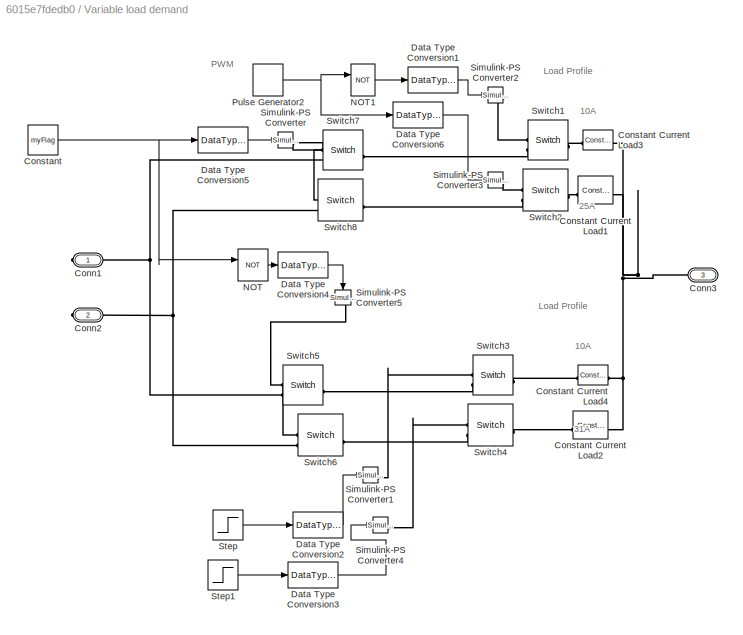
BLOCK [SubSystem] Variable load demand
  NameLocation = top
BLOCK [PMIOPort] Variable load demand/Conn1
  NameLocation = top
  Side = Right
BLOCK [PMIOPort] Variable load demand/Conn2
  Port = 2
  Side = Right
BLOCK [PMIOPort] Variable load demand/Conn3
  NameLocation = top
  Port = 3
  Side = Left
BLOCK [Constant] Variable load demand/Constant
  Value = myFlag
BLOCK [Reference] Variable load demand/Constant Current Load1  REF=ee_lib/Passive/Constant Current
Load
  SourceBlock = ee_lib/Passive/Constant Current\nLoad
  SourceType = Constant Current\nLoad
BLOCK [Reference] Variable load demand/Constant Current Load2  REF=ee_lib/Passive/Constant Current
Load
  SourceBlock = ee_lib/Passive/Constant Current\nLoad
  SourceType = Constant Current\nLoad
BLOCK [Reference] Variable load demand/Constant Current Load3  REF=ee_lib/Passive/Constant Current
Load
  SourceBlock = ee_lib/Passive/Constant Current\nLoad
  SourceType = Constant Current\nLoad
BLOCK [Reference] Variable load demand/Constant Current Load4  REF=ee_lib/Passive/Constant Current
Load
  SourceBlock = ee_lib/Passive/Constant Current\nLoad
  SourceType = Constant Current\nLoad
BLOCK [DataTypeConversion] Variable load demand/Data Type Conversion1
  OutDataTypeStr = double
  RndMeth = Floor
  SaturateOnIntegerOverflow = off
BLOCK [DataTypeConversion] Variable load demand/Data Type Conversion2
  OutDataTypeStr = double
  RndMeth = Floor
  SaturateOnIntegerOverflow = off
BLOCK [DataTypeConversion] Variable load demand/Data Type Conversion3
  OutDataTypeStr = double
  RndMeth = Floor
  SaturateOnIntegerOverflow = off
BLOCK [DataTypeConversion] Variable load demand/Data Type Conversion4
  OutDataTypeStr = double
  RndMeth = Floor
  SaturateOnIntegerOverflow = off
BLOCK [DataTypeConversion] Variable load demand/Data Type Conversion5
  OutDataTypeStr = double
  RndMeth = Floor
  SaturateOnIntegerOverflow = off
BLOCK [DataTypeConversion] Variable load demand/Data Type Conversion6
  OutDataTypeStr = double
  RndMeth = Floor
  SaturateOnIntegerOverflow = off
BLOCK [Logic] Variable load demand/NOT
  AllPortsSameDT = off
  IconShape = distinctive
  Operator = NOT
  OutDataTypeStr = boolean
BLOCK [Logic] Variable load demand/NOT1
  AllPortsSameDT = off
  IconShape = distinctive
  Operator = NOT
  OutDataTypeStr = boolean
BLOCK [DiscretePulseGenerator] Variable load demand/Pulse Generator2
  Period = TimePeriod
  PulseType = Time based
  PulseWidth = OnTime
BLOCK [Reference] Variable load demand/Simulink-PS Converter  REF=nesl_utility/Simulink-PS
Converter
  NameLocation = right
  SourceBlock = nesl_utility/Simulink-PS\nConverter
  SourceType = Simulink-PS\nConverter
BLOCK [Reference] Variable load demand/Simulink-PS Converter1  REF=nesl_utility/Simulink-PS
Converter
  SourceBlock = nesl_utility/Simulink-PS\nConverter
  SourceType = Simulink-PS\nConverter
BLOCK [Reference] Variable load demand/Simulink-PS Converter2  REF=nesl_utility/Simulink-PS
Converter
  SourceBlock = nesl_utility/Simulink-PS\nConverter
  SourceType = Simulink-PS\nConverter
BLOCK [Reference] Variable load demand/Simulink-PS Converter3  REF=nesl_utility/Simulink-PS
Converter
  SourceBlock = nesl_utility/Simulink-PS\nConverter
  SourceType = Simulink-PS\nConverter
BLOCK [Reference] Variable load demand/Simulink-PS Converter4  REF=nesl_utility/Simulink-PS
Converter
  SourceBlock = nesl_utility/Simulink-PS\nConverter
  SourceType = Simulink-PS\nConverter
BLOCK [Reference] Variable load demand/Simulink-PS Converter5  REF=nesl_utility/Simulink-PS
Converter
  NameLocation = left
  SourceBlock = nesl_utility/Simulink-PS\nConverter
  SourceType = Simulink-PS\nConverter
BLOCK [Step] Variable load demand/Step
  SampleTime = 0
  Time = SpikeTime
BLOCK [Step] Variable load demand/Step1
  After = 0
  Before = 1
  SampleTime = 0
  Time = SpikeTime
BLOCK [Reference] Variable load demand/Switch1  REF=fl_lib/Electrical/Electrical Elements/Switch
  SourceBlock = fl_lib/Electrical/Electrical Elements/Switch
  SourceType = Switch
BLOCK [Reference] Variable load demand/Switch2  REF=fl_lib/Electrical/Electrical Elements/Switch
  SourceBlock = fl_lib/Electrical/Electrical Elements/Switch
  SourceType = Switch
BLOCK [Reference] Variable load demand/Switch3  REF=fl_lib/Electrical/Electrical Elements/Switch
  SourceBlock = fl_lib/Electrical/Electrical Elements/Switch
  SourceType = Switch
BLOCK [Reference] Variable load demand/Switch4  REF=fl_lib/Electrical/Electrical Elements/Switch
  SourceBlock = fl_lib/Electrical/Electrical Elements/Switch
  SourceType = Switch
BLOCK [Reference] Variable load demand/Switch5  REF=fl_lib/Electrical/Electrical Elements/Switch
  SourceBlock = fl_lib/Electrical/Electrical Elements/Switch
  SourceType = Switch
BLOCK [Reference] Variable load demand/Switch6  REF=fl_lib/Electrical/Electrical Elements/Switch
  SourceBlock = fl_lib/Electrical/Electrical Elements/Switch
  SourceType = Switch
BLOCK [Reference] Variable load demand/Switch7  REF=fl_lib/Electrical/Electrical Elements/Switch
  SourceBlock = fl_lib/Electrical/Electrical Elements/Switch
  SourceType = Switch
BLOCK [Reference] Variable load demand/Switch8  REF=fl_lib/Electrical/Electrical Elements/Switch
  SourceBlock = fl_lib/Electrical/Electrical Elements/Switch
  SourceType = Switch
BLOCK [Reference] Voltage Sensor  REF=fl_lib/Electrical/Electrical Sensors/Voltage Sensor
  NameLocation = right
  SourceBlock = fl_lib/Electrical/Electrical Sensors/Voltage Sensor
  SourceType = Voltage Sensor
BLOCK [Reference] Voltage Sensor1  REF=fl_lib/Electrical/Electrical Sensors/Voltage Sensor
  SourceBlock = fl_lib/Electrical/Electrical Sensors/Voltage Sensor
  SourceType = Voltage Sensor
BLOCK [Reference] Voltage Sensor2  REF=fl_lib/Electrical/Electrical Sensors/Voltage Sensor
  NameLocation = top
  SourceBlock = fl_lib/Electrical/Electrical Sensors/Voltage Sensor
  SourceType = Voltage Sensor
BLOCK [Reference] Voltage Sensor3  REF=fl_lib/Electrical/Electrical Sensors/Voltage Sensor
  NameLocation = right
  SourceBlock = fl_lib/Electrical/Electrical Sensors/Voltage Sensor
  SourceType = Voltage Sensor
BLOCK [Reference] Voltage Sensor6  REF=fl_lib/Electrical/Electrical Sensors/Voltage Sensor
  Commented = on
  NameLocation = right
  SourceBlock = fl_lib/Electrical/Electrical Sensors/Voltage Sensor
  SourceType = Voltage Sensor
BLOCK [Reference] Voltage Sensor7  REF=fl_lib/Electrical/Electrical Sensors/Voltage Sensor
  Commented = on
  NameLocation = right
  SourceBlock = fl_lib/Electrical/Electrical Sensors/Voltage Sensor
  SourceType = Voltage Sensor
ANNOTATION (root): Capacitor Bank Configuration
ANNOTATION (root): 48 Volts, 3.5Kwh
ANNOTATION (root): ABS ECU load
ANNOTATION (root): ABS Load demand profile
ANNOTATION (root): DC-DC Source of 48V is converted to 14.4 volts and gives 10A
ANNOTATION (root): Relay 1
ANNOTATION (root): Relay 2
ANNOTATION Variable load demand: 10A
ANNOTATION Variable load demand: 25A
ANNOTATION Variable load demand: 31A
ANNOTATION Variable load demand: Load Profile
ANNOTATION Variable load demand: PWM
LINE Data Type Conversion:1 -> Simulink-PS Converter4:1
LINE Hit Crossing1:1 -> To Workspace1:1
LINE Hit Crossing:1 -> To Workspace:1
LINE NOT:1 -> Data Type Conversion:1
LINE PS-Simulink Converter10:1 -> Scope11:1
LINE PS-Simulink Converter11:1 -> Scope10:1
LINE PS-Simulink Converter12:1 -> Scope12:1
LINE PS-Simulink Converter1:1 -> Scope2:1
NET PS-Simulink Converter2:1 -> Hit Crossing1:1, Hit Crossing:1, Relay2:1, Relay:1, Scope4:1, To Workspace2:1
LINE PS-Simulink Converter3:1 -> Scope5:1
LINE PS-Simulink Converter4:1 -> Scope1:1
LINE PS-Simulink Converter5:1 -> Scope3:1
LINE PS-Simulink Converter6:1 -> Scope6:1
LINE PS-Simulink Converter:1 -> Scope:1
LINE Pulse Generator2:1 -> Simulink-PS Converter2:1
LINE Relay2:1 -> Simulink-PS Converter3:1
NET Relay:1 -> NOT:1, Scope7:1, Simulink-PS Converter1:1
LINE Subsystem2/Subsystem/PS-Simulink Converter1:1 -> Subsystem2/Subsystem/output:1
LINE Subsystem2/Subsystem1/PS-Simulink Converter1:1 -> Subsystem2/Subsystem1/output:1
LINE Subsystem2/Subsystem1:1 -> Subsystem2/Scope2:1
LINE Subsystem2/Subsystem2/PS-Simulink Converter1:1 -> Subsystem2/Subsystem2/output:1
LINE Subsystem2/Subsystem2:1 -> Subsystem2/Scope3:1
LINE Subsystem2/Subsystem3/PS-Simulink Converter1:1 -> Subsystem2/Subsystem3/output:1
LINE Subsystem2/Subsystem3:1 -> Subsystem2/Scope4:1
LINE Subsystem2/Subsystem4/PS-Simulink Converter1:1 -> Subsystem2/Subsystem4/output:1
LINE Subsystem2/Subsystem4:1 -> Subsystem2/Scope5:1
LINE Subsystem2/Subsystem:1 -> Subsystem2/Scope1:1
NET Variable load demand/Constant:1 -> Variable load demand/Data Type Conversion5:1, Variable load demand/NOT:1
LINE Variable load demand/Data Type Conversion1:1 -> Variable load demand/Simulink-PS Converter2:1
LINE Variable load demand/Data Type Conversion2:1 -> Variable load demand/Simulink-PS Converter1:1
LINE Variable load demand/Data Type Conversion3:1 -> Variable load demand/Simulink-PS Converter4:1
LINE Variable load demand/Data Type Conversion4:1 -> Variable load demand/Simulink-PS Converter5:1
LINE Variable load demand/Data Type Conversion5:1 -> Variable load demand/Simulink-PS Converter:1
LINE Variable load demand/Data Type Conversion6:1 -> Variable load demand/Simulink-PS Converter3:1
LINE Variable load demand/NOT1:1 -> Variable load demand/Data Type Conversion1:1
LINE Variable load demand/NOT:1 -> Variable load demand/Data Type Conversion4:1
NET Variable load demand/Pulse Generator2:1 -> Variable load demand/Data Type Conversion6:1, Variable load demand/NOT1:1
LINE Variable load demand/Step1:1 -> Variable load demand/Data Type Conversion3:1
LINE Variable load demand/Step:1 -> Variable load demand/Data Type Conversion2:1
PNET net1: Battery1:LConn1 -- Switch2:RConn2 -- Voltage Sensor3:LConn1
PNET net2: Battery1:RConn1 -- Capacitor1:RConn1 -- Current Sensor2:RConn2 -- Current Source1:RConn1 -- DC Voltage Source2:RConn1 -- DC Voltage Source3:RConn1 -- Diode1:LConn1 -- Electrical Reference1:LConn1 -- Electrical Reference3:LConn1 -- Solver Configuration:RConn1 -- Variable load demand:LConn1 -- Voltage Sensor1:RConn2 -- Voltage Sensor2:RConn2 -- Voltage Sensor3:RConn2 -- Voltage Sensor6:RConn2 -- Voltage Sensor7:RConn2 -- Voltage Sensor:RConn2
PNET net3: Capacitor1:LConn1 -- Constant Current Load2:LConn1 -- Inductor1:RConn1 -- Voltage Sensor7:LConn1
PNET net4: Constant Current Load2:RConn1 -- Constant Current Load3:LConn1 -- Current Sensor4:LConn1
PLINE Constant Current Load3:RConn1 -- Electrical Reference4:LConn1
PLINE Constant Current Load:LConn1 -- Switch1:LConn1
PLINE Constant Current Load:RConn1 -- Electrical Reference:LConn1
PNET net5: Current Sensor1:LConn1 -- Switch2:LConn1 -- Voltage Sensor:LConn1
PLINE Current Sensor1:RConn1 -- PS-Simulink Converter4:LConn1
PLINE Current Sensor1:RConn2 -- Resistor1:LConn1
PLINE Current Sensor2:LConn1 -- Subsystem2:RConn1
PLINE Current Sensor2:RConn1 -- PS-Simulink Converter1:LConn1
PLINE Current Sensor4:RConn1 -- PS-Simulink Converter11:LConn1
PNET net6: Current Sensor4:RConn2 -- Current Source1:LConn1 -- DC Voltage Source2:LConn1 -- Diode:RConn1 -- Switch1:RConn2 -- Switch:RConn2 -- Voltage Sensor6:LConn1
PNET net7: Current Sensor:LConn1 -- Switch:LConn1 -- Voltage Sensor2:LConn1
PLINE Current Sensor:RConn1 -- PS-Simulink Converter:LConn1
PNET net8: Current Sensor:RConn2 -- Variable load demand:RConn1 -- Variable load demand:RConn2
PLINE DC Voltage Source3:LConn1 -- MOSFET (Ideal, Switching)1:RConn1
PNET net9: Diode1:RConn1 -- Inductor1:LConn1 -- MOSFET (Ideal, Switching)1:RConn2
PNET net10: Diode:LConn1 -- Resistor1:RConn1 -- Subsystem2:LConn1 -- Voltage Sensor1:LConn1
PLINE MOSFET (Ideal, Switching)1:LConn1 -- Simulink-PS Converter2:RConn1
PLINE PS-Simulink Converter10:LConn1 -- Voltage Sensor6:RConn1
PLINE PS-Simulink Converter12:LConn1 -- Voltage Sensor7:RConn1
PLINE PS-Simulink Converter2:LConn1 -- Voltage Sensor1:RConn1
PLINE PS-Simulink Converter3:LConn1 -- Voltage Sensor2:RConn1
PLINE PS-Simulink Converter5:LConn1 -- Voltage Sensor:RConn1
PLINE PS-Simulink Converter6:LConn1 -- Voltage Sensor3:RConn1
PLINE Simulink-PS Converter1:RConn1 -- Switch:RConn1
PLINE Simulink-PS Converter3:RConn1 -- Switch2:RConn1
PLINE Simulink-PS Converter4:RConn1 -- Switch1:RConn1
PNET net11: Subsystem2/Capacitor10:LConn1 -- Subsystem2/Capacitor10:RConn1 -- Subsystem2/Capacitor5:RConn1 -- Subsystem2/Subsystem4:LConn1
PLINE Subsystem2/Capacitor11:LConn1 -- Subsystem2/Capacitor6:RConn1
PNET net12: Subsystem2/Capacitor11:RConn1 -- Subsystem2/Capacitor1:RConn1 -- Subsystem2/Capacitor6:LConn1 -- Subsystem2/Subsystem:LConn1
PNET net13: Subsystem2/Capacitor1:LConn1 -- Subsystem2/Capacitor2:LConn1 -- Subsystem2/Capacitor3:LConn1 -- Subsystem2/Capacitor4:LConn1 -- Subsystem2/Capacitor5:LConn1 -- Subsystem2/Conn1:RConn1
PNET net14: Subsystem2/Capacitor2:RConn1 -- Subsystem2/Capacitor7:LConn1 -- Subsystem2/Capacitor7:RConn1 -- Subsystem2/Subsystem1:LConn1
PNET net15: Subsystem2/Capacitor3:RConn1 -- Subsystem2/Capacitor8:LConn1 -- Subsystem2/Capacitor8:RConn1 -- Subsystem2/Subsystem2:LConn1
PNET net16: Subsystem2/Capacitor4:RConn1 -- Subsystem2/Capacitor9:LConn1 -- Subsystem2/Capacitor9:RConn1 -- Subsystem2/Subsystem3:LConn1
PNET net17: Subsystem2/Conn2:RConn1 -- Subsystem2/Subsystem1:RConn1 -- Subsystem2/Subsystem2:RConn1 -- Subsystem2/Subsystem3:RConn1 -- Subsystem2/Subsystem4:RConn1 -- Subsystem2/Subsystem:RConn1
PLINE Subsystem2/Subsystem/Conn1:RConn1 -- Subsystem2/Subsystem/Current Sensor1:LConn1
PLINE Subsystem2/Subsystem/Conn2:RConn1 -- Subsystem2/Subsystem/Current Sensor1:RConn2
PLINE Subsystem2/Subsystem/Current Sensor1:RConn1 -- Subsystem2/Subsystem/PS-Simulink Converter1:LConn1
PLINE Subsystem2/Subsystem1/Conn1:RConn1 -- Subsystem2/Subsystem1/Current Sensor1:LConn1
PLINE Subsystem2/Subsystem1/Conn2:RConn1 -- Subsystem2/Subsystem1/Current Sensor1:RConn2
PLINE Subsystem2/Subsystem1/Current Sensor1:RConn1 -- Subsystem2/Subsystem1/PS-Simulink Converter1:LConn1
PLINE Subsystem2/Subsystem2/Conn1:RConn1 -- Subsystem2/Subsystem2/Current Sensor1:LConn1
PLINE Subsystem2/Subsystem2/Conn2:RConn1 -- Subsystem2/Subsystem2/Current Sensor1:RConn2
PLINE Subsystem2/Subsystem2/Current Sensor1:RConn1 -- Subsystem2/Subsystem2/PS-Simulink Converter1:LConn1
PLINE Subsystem2/Subsystem3/Conn1:RConn1 -- Subsystem2/Subsystem3/Current Sensor1:LConn1
PLINE Subsystem2/Subsystem3/Conn2:RConn1 -- Subsystem2/Subsystem3/Current Sensor1:RConn2
PLINE Subsystem2/Subsystem3/Current Sensor1:RConn1 -- Subsystem2/Subsystem3/PS-Simulink Converter1:LConn1
PLINE Subsystem2/Subsystem4/Conn1:RConn1 -- Subsystem2/Subsystem4/Current Sensor1:LConn1
PLINE Subsystem2/Subsystem4/Conn2:RConn1 -- Subsystem2/Subsystem4/Current Sensor1:RConn2
PLINE Subsystem2/Subsystem4/Current Sensor1:RConn1 -- Subsystem2/Subsystem4/PS-Simulink Converter1:LConn1
PNET net18: Variable load demand/Conn1:RConn1 -- Variable load demand/Switch5:RConn2 -- Variable load demand/Switch7:RConn2
PNET net19: Variable load demand/Conn2:RConn1 -- Variable load demand/Switch6:RConn2 -- Variable load demand/Switch8:RConn2
PNET net20: Variable load demand/Conn3:RConn1 -- Variable load demand/Constant Current Load1:RConn1 -- Variable load demand/Constant Current Load2:RConn1 -- Variable load demand/Constant Current Load3:RConn1 -- Variable load demand/Constant Current Load4:RConn1
PLINE Variable load demand/Constant Current Load1:LConn1 -- Variable load demand/Switch2:LConn1
PLINE Variable load demand/Constant Current Load2:LConn1 -- Variable load demand/Switch4:LConn1
PLINE Variable load demand/Constant Current Load3:LConn1 -- Variable load demand/Switch1:LConn1
PLINE Variable load demand/Constant Current Load4:LConn1 -- Variable load demand/Switch3:LConn1
PLINE Variable load demand/Simulink-PS Converter1:RConn1 -- Variable load demand/Switch3:RConn1
PLINE Variable load demand/Simulink-PS Converter2:RConn1 -- Variable load demand/Switch1:RConn1
PLINE Variable load demand/Simulink-PS Converter3:RConn1 -- Variable load demand/Switch2:RConn1
PLINE Variable load demand/Simulink-PS Converter4:RConn1 -- Variable load demand/Switch4:RConn1
PNET net21: Variable load demand/Simulink-PS Converter5:RConn1 -- Variable load demand/Switch5:RConn1 -- Variable load demand/Switch6:RConn1
PNET net22: Variable load demand/Simulink-PS Converter:RConn1 -- Variable load demand/Switch7:RConn1 -- Variable load demand/Switch8:RConn1
PLINE Variable load demand/Switch1:RConn2 -- Variable load demand/Switch7:LConn1
PLINE Variable load demand/Switch2:RConn2 -- Variable load demand/Switch8:LConn1
PLINE Variable load demand/Switch3:RConn2 -- Variable load demand/Switch5:LConn1
PLINE Variable load demand/Switch4:RConn2 -- Variable load demand/Switch6:LConn1
note: NET lines group one-source signal fan-out (src -> all destinations, sorted); 1:1 wires keep LINE; PNET lines group multi-terminal physical nets as a canonical sorted terminal list (undirected conserving connections); 2-terminal nets keep the pairwise PLINE form
